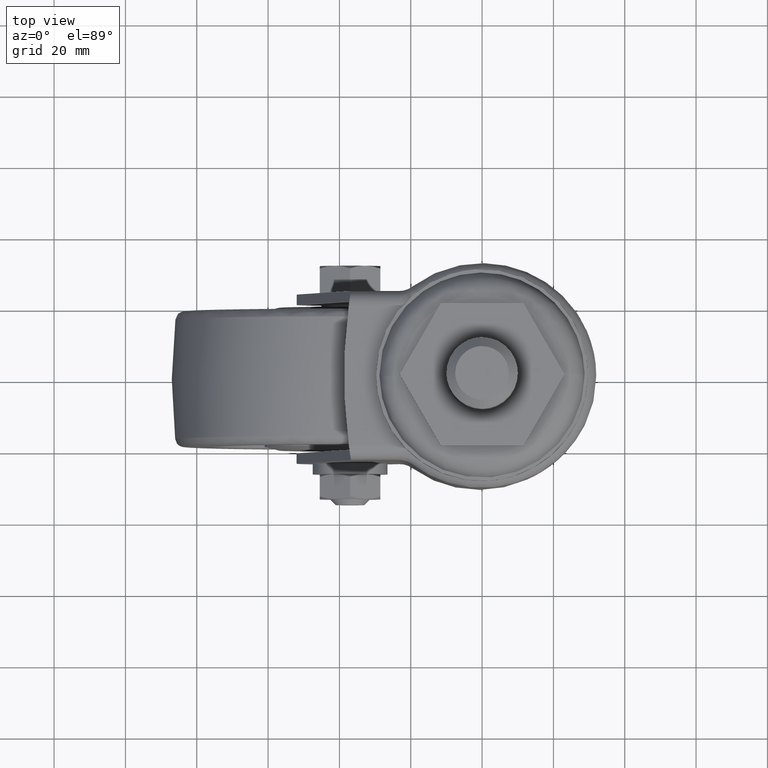
[diagram: clean part render]
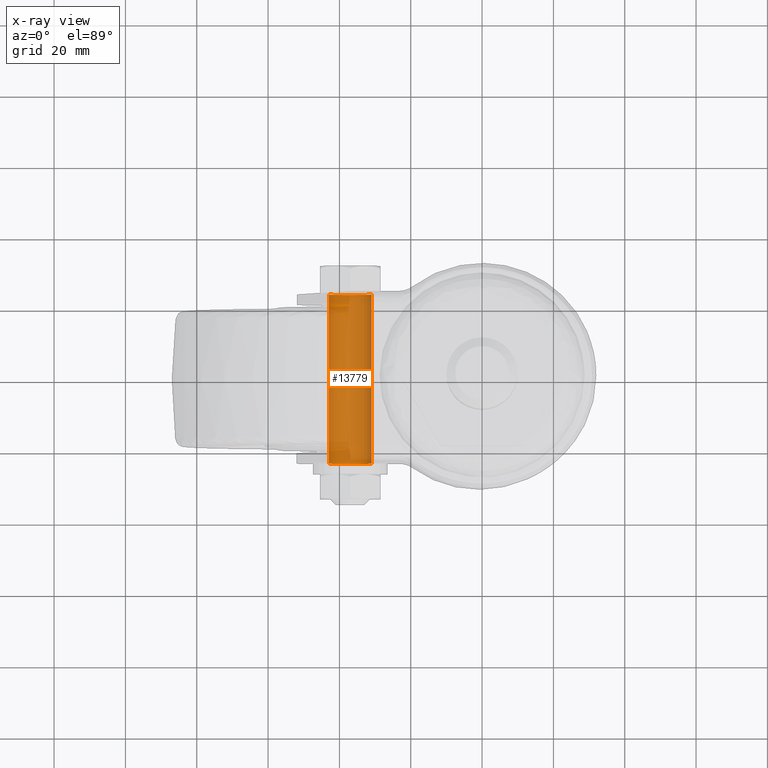
[diagram: x-ray — body ghosted, one internal face saturated and labeled with its STEP entity id]
A machine part, top view, then the same camera in x-ray: the body is ghosted and one INTERNAL B-rep face — a face not visible from any outside direction — is saturated and labeled: STEP entity #13779.
In plain terms, the highlighted face is a freeform B-spline surface patch.
Its self-contained STEP definition (entity closure, byte-faithful):
#13646=CARTESIAN_POINT('',(-37.0,-23.699999999999999,-79.500000000000000));
#13647=VERTEX_POINT('',#13646);
#13648=CARTESIAN_POINT('',(-42.988808790507569,-23.699999999999999,-73.866291237595505));
#13649=VERTEX_POINT('',#13648);
#13650=CARTESIAN_POINT('',(-37.0,-23.699999999999999,-79.500000000000000));
#13651=CARTESIAN_POINT('',(-42.644236401069357,-23.699999999999999,-79.500000000000000));
#13652=CARTESIAN_POINT('',(-42.988808790507569,-23.699999999999996,-73.866291237595490));
#13660=(BOUNDED_CURVE()B_SPLINE_CURVE(2,(#13650,#13651,#13652),.UNSPECIFIED.,.F.,.U.)B_SPLINE_CURVE_WITH_KNOTS((3,3),(0.500000000000000,0.739332962230837),.UNSPECIFIED.)CURVE()GEOMETRIC_REPRESENTATION_ITEM()RATIONAL_B_SPLINE_CURVE((1.0,0.719603993296207,0.976072041649344))REPRESENTATION_ITEM(''));
#13661=EDGE_CURVE('',#13647,#13649,#13660,.T.);
#13663=CARTESIAN_POINT('',(-31.011191209492431,-23.699999999999999,-73.133708762404481));
#13664=VERTEX_POINT('',#13663);
#13665=CARTESIAN_POINT('',(-31.011191209492431,-23.700000000000003,-73.133708762404495));
#13666=CARTESIAN_POINT('',(-30.999999999999996,-23.700000000000003,-73.316683420014741));
#13667=CARTESIAN_POINT('',(-31.0,-23.699999999999999,-73.500000000000000));
#13668=CARTESIAN_POINT('',(-31.000000000000007,-23.700000000000003,-79.500000000000014));
#13669=CARTESIAN_POINT('',(-37.0,-23.699999999999999,-79.500000000000000));
#13677=(BOUNDED_CURVE()B_SPLINE_CURVE(2,(#13665,#13666,#13667,#13668,#13669),.UNSPECIFIED.,.F.,.U.)B_SPLINE_CURVE_WITH_KNOTS((3,2,3),(0.239332962230837,0.250000000000000,0.500000000000000),.UNSPECIFIED.)CURVE()GEOMETRIC_REPRESENTATION_ITEM()RATIONAL_B_SPLINE_CURVE((0.976072041649345,0.987502787890340,1.0,0.707106781186548,1.0))REPRESENTATION_ITEM(''));
#13678=EDGE_CURVE('',#13664,#13647,#13677,.T.);
#13713=CARTESIAN_POINT('',(-31.011191209468802,-24.885000000000009,-73.133708762790860));
#13714=CARTESIAN_POINT('',(-30.644899972259662,-24.885000000000005,-79.122517553322055));
#13715=CARTESIAN_POINT('',(-36.633708762790860,-24.885000000000009,-79.488808790531195));
#13716=CARTESIAN_POINT('',(-42.622517553322069,-24.885000000000005,-79.855100027740335));
#13717=CARTESIAN_POINT('',(-42.988808790531202,-24.885000000000009,-73.866291237209140));
#13718=CARTESIAN_POINT('',(-31.011191209468802,24.914625000000012,-73.133708762790860));
#13719=CARTESIAN_POINT('',(-30.644899972259662,24.914625000000004,-79.122517553322055));
#13720=CARTESIAN_POINT('',(-36.633708762790860,24.914625000000012,-79.488808790531195));
#13721=CARTESIAN_POINT('',(-42.622517553322069,24.914625000000004,-79.855100027740335));
#13722=CARTESIAN_POINT('',(-42.988808790531202,24.914625000000012,-73.866291237209140));
#13730=(BOUNDED_SURFACE()B_SPLINE_SURFACE(2,1,((#13713,#13718),(#13714,#13719),(#13715,#13720),(#13716,#13721),(#13717,#13722)),.UNSPECIFIED.,.F.,.F.,.U.)B_SPLINE_SURFACE_WITH_KNOTS((3,2,3),(2,2),(0.0,9.941125496954268,19.882250993908539),(0.0,49.799625000000027),.UNSPECIFIED.)GEOMETRIC_REPRESENTATION_ITEM()RATIONAL_B_SPLINE_SURFACE(((1.0,1.0),(0.707106781186548,0.707106781186548),(1.0,1.0),(0.707106781186548,0.707106781186548),(1.0,1.0)))REPRESENTATION_ITEM('')SURFACE());
#13731=ORIENTED_EDGE('',*,*,#13678,.T.);
#13732=ORIENTED_EDGE('',*,*,#13661,.T.);
#13733=CARTESIAN_POINT('',(-42.988808790507584,23.699999999999999,-73.866291237595519));
#13734=VERTEX_POINT('',#13733);
#13735=CARTESIAN_POINT('',(-42.988808790507569,-23.699999999999999,-73.866291237595505));
#13736=CARTESIAN_POINT('',(-42.988808790507584,23.699999999999999,-73.866291237595519));
#13737=QUASI_UNIFORM_CURVE('',1,(#13735,#13736),.UNSPECIFIED.,.F.,.U.);
#13738=EDGE_CURVE('',#13649,#13734,#13737,.T.);
#13739=ORIENTED_EDGE('',*,*,#13738,.T.);
#13740=CARTESIAN_POINT('',(-37.0,23.699999999999999,-79.500000000000000));
#13741=VERTEX_POINT('',#13740);
#13742=CARTESIAN_POINT('',(-37.0,23.699999999999999,-79.500000000000000));
#13743=CARTESIAN_POINT('',(-42.644236401069328,23.699999999999992,-79.500000000000000));
#13744=CARTESIAN_POINT('',(-42.988808790507562,23.700000000000003,-73.866291237595519));
#13752=(BOUNDED_CURVE()B_SPLINE_CURVE(2,(#13742,#13743,#13744),.UNSPECIFIED.,.F.,.U.)B_SPLINE_CURVE_WITH_KNOTS((3,3),(0.500000000000000,0.739332962230836),.UNSPECIFIED.)CURVE()GEOMETRIC_REPRESENTATION_ITEM()RATIONAL_B_SPLINE_CURVE((1.0,0.719603993296208,0.976072041649343))REPRESENTATION_ITEM(''));
#13753=EDGE_CURVE('',#13741,#13734,#13752,.T.);
#13754=ORIENTED_EDGE('',*,*,#13753,.F.);
#13755=CARTESIAN_POINT('',(-31.011191209492431,23.699999999999999,-73.133708762404481));
#13756=VERTEX_POINT('',#13755);
#13757=CARTESIAN_POINT('',(-31.011191209492427,23.699999999999996,-73.133708762404495));
#13758=CARTESIAN_POINT('',(-30.999999999999993,23.699999999999996,-73.316683420014741));
#13759=CARTESIAN_POINT('',(-31.0,23.699999999999999,-73.500000000000000));
#13760=CARTESIAN_POINT('',(-31.000000000000007,23.700000000000003,-79.500000000000014));
#13761=CARTESIAN_POINT('',(-37.0,23.699999999999999,-79.500000000000000));
#13769=(BOUNDED_CURVE()B_SPLINE_CURVE(2,(#13757,#13758,#13759,#13760,#13761),.UNSPECIFIED.,.F.,.U.)B_SPLINE_CURVE_WITH_KNOTS((3,2,3),(0.239332962230836,0.250000000000000,0.500000000000000),.UNSPECIFIED.)CURVE()GEOMETRIC_REPRESENTATION_ITEM()RATIONAL_B_SPLINE_CURVE((0.976072041649344,0.987502787890340,1.0,0.707106781186548,1.0))REPRESENTATION_ITEM(''));
#13770=EDGE_CURVE('',#13756,#13741,#13769,.T.);
#13771=ORIENTED_EDGE('',*,*,#13770,.F.);
#13772=CARTESIAN_POINT('',(-31.011191209492431,-23.699999999999999,-73.133708762404481));
#13773=CARTESIAN_POINT('',(-31.011191209492431,23.699999999999999,-73.133708762404481));
#13774=QUASI_UNIFORM_CURVE('',1,(#13772,#13773),.UNSPECIFIED.,.F.,.U.);
#13775=EDGE_CURVE('',#13664,#13756,#13774,.T.);
#13776=ORIENTED_EDGE('',*,*,#13775,.F.);
#13777=EDGE_LOOP('',(#13731,#13732,#13739,#13754,#13771,#13776));
#13778=FACE_OUTER_BOUND('',#13777,.T.);
#13779=ADVANCED_FACE('',(#13778),#13730,.T.);